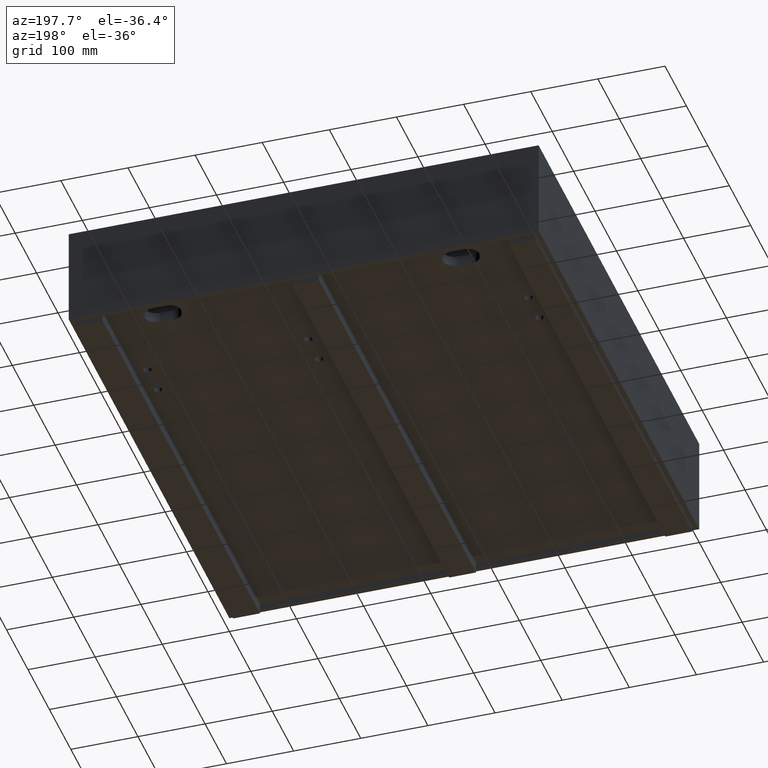
[diagram: clean part render]
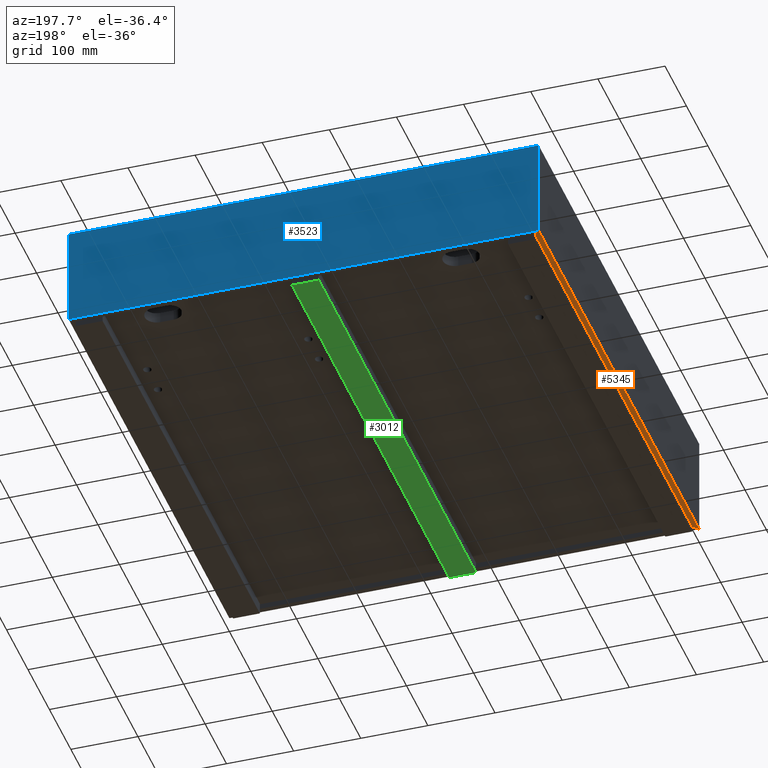
[diagram: same view with three faces highlighted in distinct colors, each labeled with its STEP entity id]
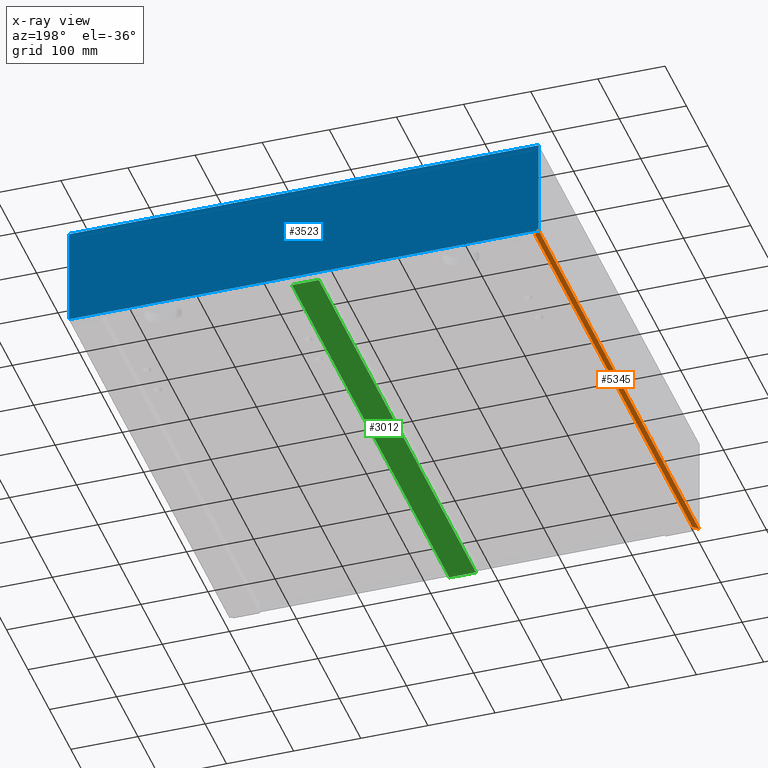
[diagram: x-ray of the same camera — body ghosted, the three highlighted faces saturated]
A machine part, auxiliary view with three faces highlighted in distinct colors.
The next image is the same camera in x-ray (body ghosted, the three faces saturated) — at least one of them is partly hidden behind the body in this view.
Their STEP definitions:

[orange] entity #5345 — the highlighted planar face has unit normal (-0, 0, 1).
#272 = ORIENTED_EDGE ( 'NONE', *, *, #3845, .T. ) ;
#305 = VECTOR ( 'NONE', #9795, 1000.000000000000000 ) ;
#533 = VECTOR ( 'NONE', #6829, 1000.000000000000000 ) ;
#1014 = EDGE_CURVE ( 'NONE', #4895, #5837, #11110, .T. ) ;
#1180 = VERTEX_POINT ( 'NONE', #10641 ) ;
#1473 = CARTESIAN_POINT ( 'NONE',  ( 8.000000000000000000, 8.000000000000062172, -150.0000000000000284 ) ) ;
#2010 = LINE ( 'NONE', #5443, #10059 ) ;
#2207 = EDGE_CURVE ( 'NONE', #2907, #4895, #2010, .T. ) ;
#2383 = DIRECTION ( 'NONE',  ( -2.602085213965211027E-18, 5.910172389466879653E-19, 1.000000000000000000 ) ) ;
#2907 = VERTEX_POINT ( 'NONE', #6936 ) ;
#2917 = LINE ( 'NONE', #6362, #305 ) ;
#3066 = EDGE_CURVE ( 'NONE', #2907, #1180, #2917, .T. ) ;
#3218 = FACE_OUTER_BOUND ( 'NONE', #3838, .T. ) ;
#3380 = CARTESIAN_POINT ( 'NONE',  ( 8.000000000000000000, 900.2131818450033052, -150.0000000000000284 ) ) ;
#3838 = EDGE_LOOP ( 'NONE', ( #5609, #272, #6200, #5925 ) ) ;
#3845 = EDGE_CURVE ( 'NONE', #5837, #1180, #9192, .T. ) ;
#4029 = AXIS2_PLACEMENT_3D ( 'NONE', #10102, #2383, #5818 ) ;
#4895 = VERTEX_POINT ( 'NONE', #8764 ) ;
#4910 = DIRECTION ( 'NONE',  ( -0.7071067811865474617, -0.7071067811865474617, -1.734723475976807480E-18 ) ) ;
#5345 = ADVANCED_FACE ( 'NONE', ( #3218 ), #6664, .F. ) ;
#5443 = CARTESIAN_POINT ( 'NONE',  ( -5.204170427930421283E-15, 750.0000000000000000, -150.0000000000000284 ) ) ;
#5609 = ORIENTED_EDGE ( 'NONE', *, *, #1014, .T. ) ;
#5818 = DIRECTION ( 'NONE',  ( 1.000000000000000000, 1.355252715606880843E-20, 2.602085213965211027E-18 ) ) ;
#5837 = VERTEX_POINT ( 'NONE', #6564 ) ;
#5925 = ORIENTED_EDGE ( 'NONE', *, *, #2207, .T. ) ;
#6200 = ORIENTED_EDGE ( 'NONE', *, *, #3066, .F. ) ;
#6362 = CARTESIAN_POINT ( 'NONE',  ( 0.0000000000000000000, 900.2131818450031915, -150.0000000000000284 ) ) ;
#6564 = CARTESIAN_POINT ( 'NONE',  ( 8.000000000000000000, 8.000000000000062172, -150.0000000000000284 ) ) ;
#6664 = PLANE ( 'NONE',  #4029 ) ;
#6829 = DIRECTION ( 'NONE',  ( -1.355252715606880543E-20, -1.000000000000000000, -5.910172389466880616E-19 ) ) ;
#6936 = CARTESIAN_POINT ( 'NONE',  ( 0.0000000000000000000, 750.0000000000000000, -150.0000000000000284 ) ) ;
#8764 = CARTESIAN_POINT ( 'NONE',  ( 8.000000000000000000, 742.0000000000000000, -150.0000000000000284 ) ) ;
#8872 = DIRECTION ( 'NONE',  ( 0.7071067811865473507, -0.7071067811865477948, 1.301042606982605513E-18 ) ) ;
#9192 = LINE ( 'NONE', #1473, #9943 ) ;
#9795 = DIRECTION ( 'NONE',  ( -1.355252715606880543E-20, -1.000000000000000000, -5.910172389466880616E-19 ) ) ;
#9943 = VECTOR ( 'NONE', #4910, 1000.000000000000114 ) ;
#10059 = VECTOR ( 'NONE', #8872, 999.9999999999998863 ) ;
#10102 = CARTESIAN_POINT ( 'NONE',  ( 0.0000000000000000000, 900.2131818450031915, -150.0000000000000284 ) ) ;
#10641 = CARTESIAN_POINT ( 'NONE',  ( 4.336808689942017736E-16, 0.0000000000000000000, -150.0000000000000284 ) ) ;
#11110 = LINE ( 'NONE', #3380, #533 ) ;

[blue] entity #3523 — the highlighted planar face has unit normal (0, 1, 0).
#244 = DIRECTION ( 'NONE',  ( 0.0000000000000000000, 0.0000000000000000000, 1.000000000000000000 ) ) ;
#855 = LINE ( 'NONE', #4294, #8863 ) ;
#930 = VERTEX_POINT ( 'NONE', #7498 ) ;
#1190 = ORIENTED_EDGE ( 'NONE', *, *, #4942, .T. ) ;
#1489 = VERTEX_POINT ( 'NONE', #2581 ) ;
#1709 = DIRECTION ( 'NONE',  ( -1.000000000000000000, -0.0000000000000000000, -0.0000000000000000000 ) ) ;
#2163 = ORIENTED_EDGE ( 'NONE', *, *, #3962, .T. ) ;
#2507 = EDGE_CURVE ( 'NONE', #930, #2782, #6008, .T. ) ;
#2581 = CARTESIAN_POINT ( 'NONE',  ( 0.0000000000000000000, 749.9999000000000251, 0.0000000000000000000 ) ) ;
#2782 = VERTEX_POINT ( 'NONE', #3211 ) ;
#2801 = EDGE_LOOP ( 'NONE', ( #1190, #3519, #2163, #5337 ) ) ;
#2941 = VECTOR ( 'NONE', #244, 1000.000000000000000 ) ;
#3211 = CARTESIAN_POINT ( 'NONE',  ( 0.0000000000000000000, 749.9999000000000251, -150.0000000000000000 ) ) ;
#3400 = CARTESIAN_POINT ( 'NONE',  ( 0.0000000000000000000, 749.9999000000000251, 0.0000000000000000000 ) ) ;
#3519 = ORIENTED_EDGE ( 'NONE', *, *, #10322, .T. ) ;
#3523 = ADVANCED_FACE ( 'NONE', ( #7689 ), #11126, .T. ) ;
#3962 = EDGE_CURVE ( 'NONE', #6597, #930, #855, .T. ) ;
#4103 = LINE ( 'NONE', #7548, #7006 ) ;
#4294 = CARTESIAN_POINT ( 'NONE',  ( 700.0000000000000000, 749.9999000000000251, -150.0000000000000000 ) ) ;
#4512 = AXIS2_PLACEMENT_3D ( 'NONE', #3400, #6853, #10288 ) ;
#4539 = LINE ( 'NONE', #7971, #2941 ) ;
#4777 = CARTESIAN_POINT ( 'NONE',  ( 700.0000000000000000, 749.9999000000000251, 0.0000000000000000000 ) ) ;
#4942 = EDGE_CURVE ( 'NONE', #2782, #1489, #4539, .T. ) ;
#5337 = ORIENTED_EDGE ( 'NONE', *, *, #2507, .T. ) ;
#6008 = LINE ( 'NONE', #9439, #8425 ) ;
#6597 = VERTEX_POINT ( 'NONE', #4777 ) ;
#6853 = DIRECTION ( 'NONE',  ( 0.0000000000000000000, 1.000000000000000000, 0.0000000000000000000 ) ) ;
#7006 = VECTOR ( 'NONE', #10987, 1000.000000000000000 ) ;
#7498 = CARTESIAN_POINT ( 'NONE',  ( 700.0000000000000000, 749.9999000000000251, -150.0000000000000000 ) ) ;
#7548 = CARTESIAN_POINT ( 'NONE',  ( 0.0000000000000000000, 749.9999000000000251, 0.0000000000000000000 ) ) ;
#7689 = FACE_OUTER_BOUND ( 'NONE', #2801, .T. ) ;
#7741 = DIRECTION ( 'NONE',  ( -0.0000000000000000000, -0.0000000000000000000, -1.000000000000000000 ) ) ;
#7971 = CARTESIAN_POINT ( 'NONE',  ( 0.0000000000000000000, 749.9999000000000251, -150.0000000000000000 ) ) ;
#8425 = VECTOR ( 'NONE', #1709, 1000.000000000000000 ) ;
#8863 = VECTOR ( 'NONE', #7741, 1000.000000000000000 ) ;
#9439 = CARTESIAN_POINT ( 'NONE',  ( 0.0000000000000000000, 749.9999000000000251, -150.0000000000000000 ) ) ;
#10288 = DIRECTION ( 'NONE',  ( 0.0000000000000000000, -0.0000000000000000000, 1.000000000000000000 ) ) ;
#10322 = EDGE_CURVE ( 'NONE', #1489, #6597, #4103, .T. ) ;
#10987 = DIRECTION ( 'NONE',  ( 1.000000000000000000, 0.0000000000000000000, 0.0000000000000000000 ) ) ;
#11126 = PLANE ( 'NONE',  #4512 ) ;

[green] entity #3012 — the highlighted planar face has unit normal (-0, 0, -1).
#437 = LINE ( 'NONE', #3881, #8223 ) ;
#459 = LINE ( 'NONE', #3906, #1882 ) ;
#547 = VERTEX_POINT ( 'NONE', #11011 ) ;
#1118 = DIRECTION ( 'NONE',  ( -0.0000000000000000000, 0.0000000000000000000, -1.000000000000000000 ) ) ;
#1181 = LINE ( 'NONE', #4617, #7017 ) ;
#1494 = CARTESIAN_POINT ( 'NONE',  ( 369.9999999999998295, 8.000000000000007105, -158.0000000000003126 ) ) ;
#1725 = EDGE_CURVE ( 'NONE', #6089, #10477, #1181, .T. ) ;
#1882 = VECTOR ( 'NONE', #7349, 1000.000000000000000 ) ;
#1972 = FACE_OUTER_BOUND ( 'NONE', #6514, .T. ) ;
#2007 = CARTESIAN_POINT ( 'NONE',  ( 369.9999999999999432, 741.9999000000000251, -158.0000000000003126 ) ) ;
#3012 = ADVANCED_FACE ( 'NONE', ( #1972 ), #5411, .T. ) ;
#3107 = CARTESIAN_POINT ( 'NONE',  ( 329.9999999999998295, 8.000000000000007105, -158.0000000000003126 ) ) ;
#3597 = CARTESIAN_POINT ( 'NONE',  ( 369.9999999999998295, 8.000000000000007105, -158.0000000000003126 ) ) ;
#3881 = CARTESIAN_POINT ( 'NONE',  ( 369.9999999999999432, 741.9999000000000251, -158.0000000000003126 ) ) ;
#3906 = CARTESIAN_POINT ( 'NONE',  ( 329.9999999999998863, 741.9999000000000251, -158.0000000000003126 ) ) ;
#4558 = DIRECTION ( 'NONE',  ( -1.000000000000000000, -5.956193060860203699E-35, 0.0000000000000000000 ) ) ;
#4617 = CARTESIAN_POINT ( 'NONE',  ( 369.9999999999999432, 741.9999000000000251, -158.0000000000003126 ) ) ;
#4932 = DIRECTION ( 'NONE',  ( -1.000000000000000000, 1.301042606982606060E-16, 0.0000000000000000000 ) ) ;
#5043 = EDGE_CURVE ( 'NONE', #7779, #547, #459, .T. ) ;
#5185 = ORIENTED_EDGE ( 'NONE', *, *, #1725, .T. ) ;
#5411 = PLANE ( 'NONE',  #10944 ) ;
#5484 = ORIENTED_EDGE ( 'NONE', *, *, #5871, .T. ) ;
#5691 = ORIENTED_EDGE ( 'NONE', *, *, #8167, .T. ) ;
#5871 = EDGE_CURVE ( 'NONE', #10477, #7779, #9211, .T. ) ;
#6089 = VERTEX_POINT ( 'NONE', #2007 ) ;
#6514 = EDGE_LOOP ( 'NONE', ( #5185, #5484, #10421, #5691 ) ) ;
#7017 = VECTOR ( 'NONE', #8056, 1000.000000000000000 ) ;
#7325 = DIRECTION ( 'NONE',  ( 1.000000000000000000, 5.956193060860203699E-35, 0.0000000000000000000 ) ) ;
#7349 = DIRECTION ( 'NONE',  ( 7.562828173581198609E-17, 1.000000000000000000, 0.0000000000000000000 ) ) ;
#7779 = VERTEX_POINT ( 'NONE', #3107 ) ;
#8056 = DIRECTION ( 'NONE',  ( -1.512565634716239722E-16, -1.000000000000000000, 0.0000000000000000000 ) ) ;
#8167 = EDGE_CURVE ( 'NONE', #547, #6089, #437, .T. ) ;
#8223 = VECTOR ( 'NONE', #7325, 1000.000000000000000 ) ;
#8733 = VECTOR ( 'NONE', #4932, 1000.000000000000000 ) ;
#8840 = CARTESIAN_POINT ( 'NONE',  ( 0.0000000000000000000, 0.0000000000000000000, -158.0000000000003126 ) ) ;
#9211 = LINE ( 'NONE', #1494, #8733 ) ;
#10421 = ORIENTED_EDGE ( 'NONE', *, *, #5043, .T. ) ;
#10477 = VERTEX_POINT ( 'NONE', #3597 ) ;
#10944 = AXIS2_PLACEMENT_3D ( 'NONE', #8840, #1118, #4558 ) ;
#11011 = CARTESIAN_POINT ( 'NONE',  ( 329.9999999999998863, 741.9999000000000251, -158.0000000000003126 ) ) ;